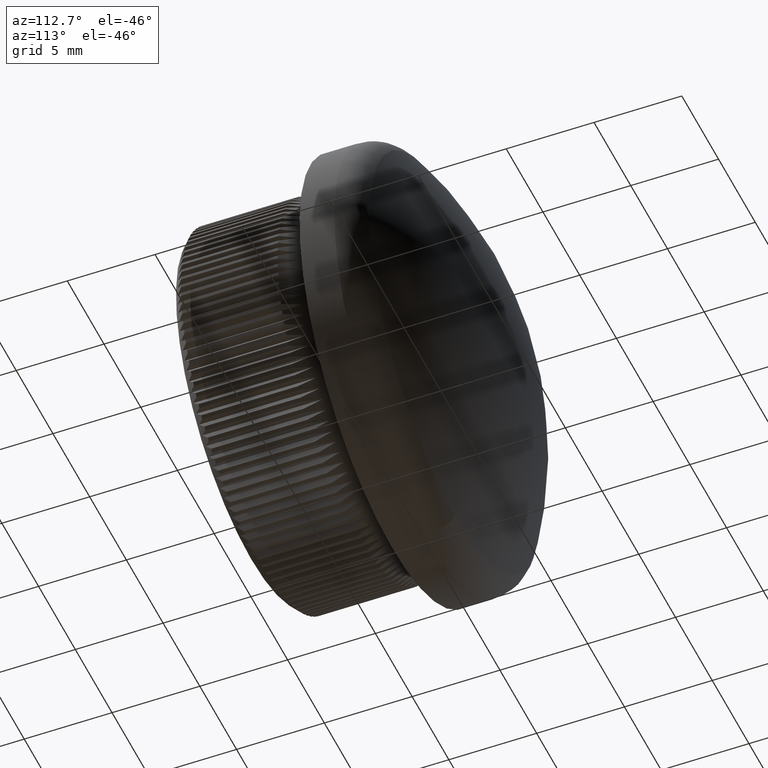
[diagram: clean part render]
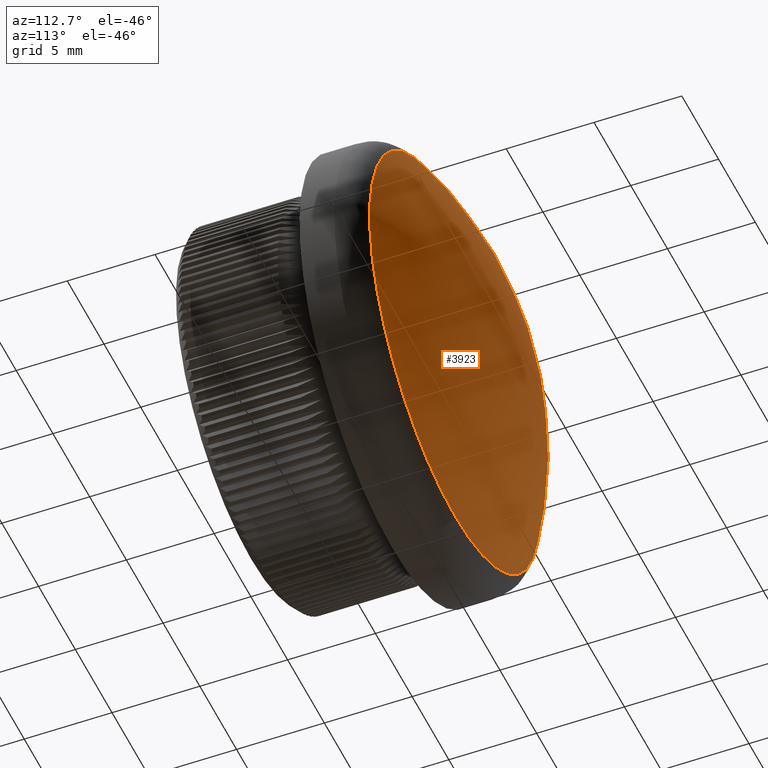
[diagram: same view with one face highlighted and labeled with its STEP entity id]
A machine part, auxiliary view. The second image highlights one B-rep face of the part: STEP entity #3923.
In plain terms, the highlighted spherical surface has radius 20.7012 mm.
Its self-contained STEP definition (entity closure, byte-faithful):
#1664 = FACE_OUTER_BOUND ( 'NONE', #16893, .T. ) ;
#3521 = CARTESIAN_POINT ( 'NONE',  ( 0.000000000000000000, -5.501190476190489065, 0.000000000000000000 ) ) ;
#3835 = DIRECTION ( 'NONE',  ( 0.000000000000000000, 0.000000000000000000, 1.000000000000000000 ) ) ;
#3923 = ADVANCED_FACE ( 'NONE', ( #1664 ), #13641, .T. ) ;
#3989 = AXIS2_PLACEMENT_3D ( 'NONE', #3521, #3835, #9241 ) ;
#7870 = AXIS2_PLACEMENT_3D ( 'NONE', #10414, #8726, #12402 ) ;
#8726 = DIRECTION ( 'NONE',  ( 0.000000000000000000, 1.000000000000000000, 0.000000000000000000 ) ) ;
#9241 = DIRECTION ( 'NONE',  ( 1.000000000000000000, 0.000000000000000000, 0.000000000000000000 ) ) ;
#10414 = CARTESIAN_POINT ( 'NONE',  ( 0.000000000000000000, 11.62910269790680040, 0.000000000000000000 ) ) ;
#11979 = ORIENTED_EDGE ( 'NONE', *, *, #14753, .T. ) ;
#12402 = DIRECTION ( 'NONE',  ( 0.000000000000000000, 0.000000000000000000, -1.000000000000000000 ) ) ;
#13641 = SPHERICAL_SURFACE ( 'NONE', #3989, 20.70119047619049013 ) ;
#13769 = CIRCLE ( 'NONE', #7870, 11.62292316506461454 ) ;
#14753 = EDGE_CURVE ( 'NONE', #16750, #16750, #13769, .T. ) ;
#15945 = CARTESIAN_POINT ( 'NONE',  ( 0.000000000000000000, 11.62910269790680040, -11.62292316506461454 ) ) ;
#16750 = VERTEX_POINT ( 'NONE', #15945 ) ;
#16893 = EDGE_LOOP ( 'NONE', ( #11979 ) ) ;